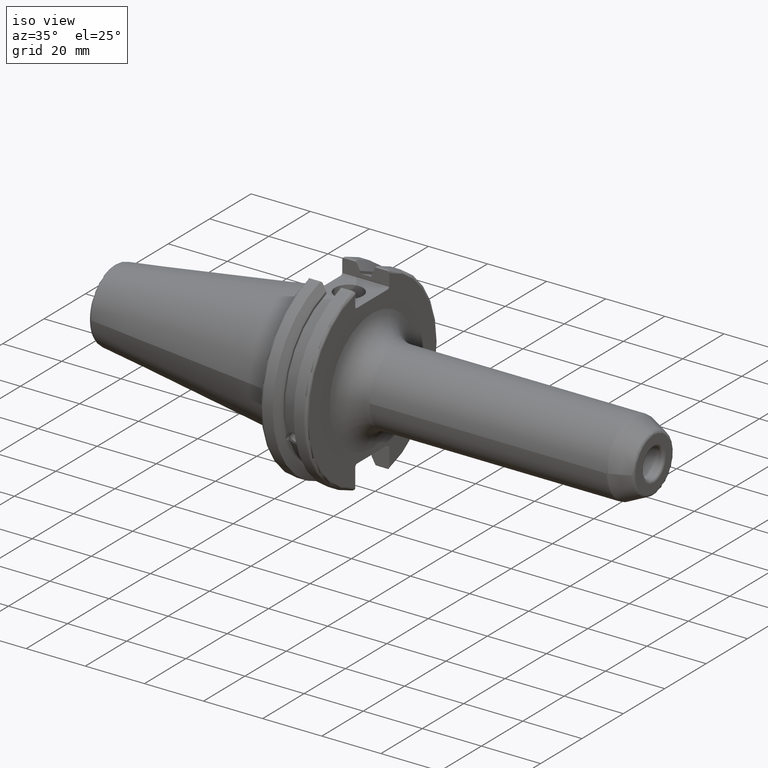
[diagram: clean part render]
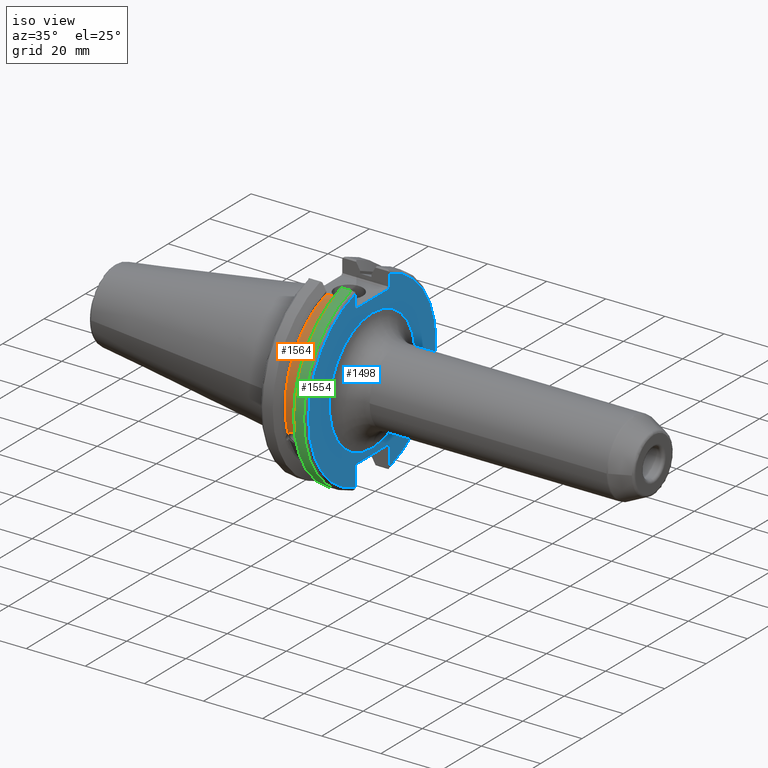
[diagram: same view with three faces highlighted in distinct colors, each labeled with its STEP entity id]
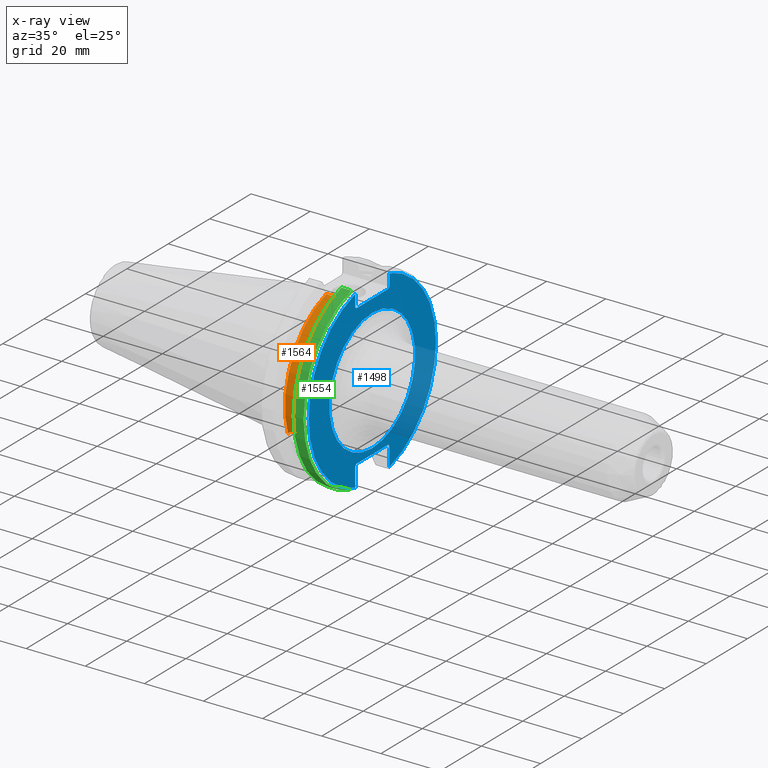
[diagram: x-ray of the same camera — body ghosted, the three highlighted faces saturated]
A machine part, iso view with three faces highlighted in distinct colors.
The next image is the same camera in x-ray (body ghosted, the three faces saturated) — at least one of them is partly hidden behind the body in this view.
Their STEP definitions:

[orange] entity #1564 — the highlighted cylindrical surface (partial cylindrical patch) has radius 28.15 mm, axis along (1, 0, 0).
#71=B_SPLINE_CURVE_WITH_KNOTS('',3,(#2518,#2519,#2520,#2521,#2522,#2523,
#2524,#2525,#2526,#2527,#2528,#2529,#2530,#2531),.UNSPECIFIED.,.F.,.F.,
(4,2,2,2,2,2,4),(0.401639126382404,0.474814416953736,0.553950208498303,
0.63308600004287,0.712221791587437,0.791357583132004,0.864532873703336),
 .UNSPECIFIED.);
#159=LINE('',#2922,#251);
#251=VECTOR('',#2081,10.);
#305=CYLINDRICAL_SURFACE('',#1759,28.15);
#432=FACE_OUTER_BOUND('',#531,.T.);
#531=EDGE_LOOP('',(#1428,#1429,#1430,#1431));
#613=CIRCLE('',#1760,28.15);
#614=CIRCLE('',#1761,28.15);
#667=VERTEX_POINT('',#2515);
#668=VERTEX_POINT('',#2517);
#749=VERTEX_POINT('',#2919);
#750=VERTEX_POINT('',#2921);
#839=EDGE_CURVE('',#668,#667,#71,.T.);
#950=EDGE_CURVE('',#750,#749,#159,.T.);
#1001=EDGE_CURVE('',#750,#667,#613,.T.);
#1002=EDGE_CURVE('',#749,#668,#614,.T.);
#1428=ORIENTED_EDGE('',*,*,#839,.T.);
#1429=ORIENTED_EDGE('',*,*,#1001,.F.);
#1430=ORIENTED_EDGE('',*,*,#950,.T.);
#1431=ORIENTED_EDGE('',*,*,#1002,.T.);
#1564=ADVANCED_FACE('',(#432),#305,.T.);
#1759=AXIS2_PLACEMENT_3D('',#3070,#2189,#2190);
#1760=AXIS2_PLACEMENT_3D('',#3071,#2191,#2192);
#1761=AXIS2_PLACEMENT_3D('',#3072,#2193,#2194);
#2081=DIRECTION('',(-1.,0.,0.));
#2189=DIRECTION('center_axis',(1.,0.,0.));
#2190=DIRECTION('ref_axis',(0.,-0.887654187951484,0.46051063246378));
#2191=DIRECTION('center_axis',(1.,0.,0.));
#2192=DIRECTION('ref_axis',(0.,0.,-1.));
#2193=DIRECTION('center_axis',(1.,0.,0.));
#2194=DIRECTION('ref_axis',(0.,0.,-1.));
#2515=CARTESIAN_POINT('',(13.0491,-26.734714844398,-8.81348524641211));
#2517=CARTESIAN_POINT('',(9.2191,-26.734714844398,-8.81348524641212));
#2518=CARTESIAN_POINT('Ctrl Pts',(9.2191,-26.734714844398,-8.81348524641212));
#2519=CARTESIAN_POINT('Ctrl Pts',(9.32533057097183,-26.8086519721597,-8.58920529678291));
#2520=CARTESIAN_POINT('Ctrl Pts',(9.47682013770509,-26.8729987454904,-8.38416529997369));
#2521=CARTESIAN_POINT('Ctrl Pts',(9.83557062657411,-26.9778908791383,-8.04056861831091));
#2522=CARTESIAN_POINT('Ctrl Pts',(10.0716450112988,-27.0233016799732,-7.88512567185902));
#2523=CARTESIAN_POINT('Ctrl Pts',(10.5890125426388,-27.0826966800569,-7.6786444840004));
#2524=CARTESIAN_POINT('Ctrl Pts',(10.8703140281848,-27.0968804077294,-7.62768458768512));
#2525=CARTESIAN_POINT('Ctrl Pts',(11.3978859718152,-27.0968804077294,-7.62768458768512));
#2526=CARTESIAN_POINT('Ctrl Pts',(11.6791874573612,-27.0826966800569,-7.6786444840004));
#2527=CARTESIAN_POINT('Ctrl Pts',(12.1965549887012,-27.0233016799732,-7.88512567185902));
#2528=CARTESIAN_POINT('Ctrl Pts',(12.4326293734259,-26.9778908791383,-8.04056861831091));
#2529=CARTESIAN_POINT('Ctrl Pts',(12.7913798622949,-26.8729987454904,-8.38416529997369));
#2530=CARTESIAN_POINT('Ctrl Pts',(12.9428694290282,-26.8086519721597,-8.58920529678291));
#2531=CARTESIAN_POINT('Ctrl Pts',(13.0491,-26.734714844398,-8.81348524641211));
#2919=CARTESIAN_POINT('',(9.2191,-8.19,26.932255754021));
#2921=CARTESIAN_POINT('',(13.0491,-8.19,26.932255754021));
#2922=CARTESIAN_POINT('',(11.1341,-8.19,26.932255754021));
#3070=CARTESIAN_POINT('Origin',(11.1341,0.,0.));
#3071=CARTESIAN_POINT('Origin',(13.0491,0.,0.));
#3072=CARTESIAN_POINT('Origin',(9.2191,0.,0.));

[blue] entity #1498 — the highlighted planar face has unit normal (1, 0, 0).
#99=LINE('',#2370,#191);
#100=LINE('',#2372,#192);
#101=LINE('',#2374,#193);
#102=LINE('',#2376,#194);
#103=LINE('',#2378,#195);
#104=LINE('',#2382,#196);
#105=LINE('',#2384,#197);
#106=LINE('',#2386,#198);
#107=LINE('',#2388,#199);
#108=LINE('',#2389,#200);
#191=VECTOR('',#1839,10.);
#192=VECTOR('',#1840,10.);
#193=VECTOR('',#1841,10.);
#194=VECTOR('',#1842,10.);
#195=VECTOR('',#1843,10.);
#196=VECTOR('',#1846,10.);
#197=VECTOR('',#1847,10.);
#198=VECTOR('',#1848,10.);
#199=VECTOR('',#1849,10.);
#200=VECTOR('',#1850,10.);
#310=FACE_BOUND('',#455,.T.);
#324=PLANE('',#1625);
#366=FACE_OUTER_BOUND('',#454,.T.);
#454=EDGE_LOOP('',(#1055,#1056,#1057,#1058,#1059,#1060,#1061,#1062,#1063,
#1064,#1065,#1066));
#455=EDGE_LOOP('',(#1067));
#562=CIRCLE('',#1624,20.7);
#563=CIRCLE('',#1626,30.75);
#564=CIRCLE('',#1627,30.75);
#637=VERTEX_POINT('',#2362);
#638=VERTEX_POINT('',#2366);
#639=VERTEX_POINT('',#2367);
#640=VERTEX_POINT('',#2369);
#641=VERTEX_POINT('',#2371);
#642=VERTEX_POINT('',#2373);
#643=VERTEX_POINT('',#2375);
#644=VERTEX_POINT('',#2377);
#645=VERTEX_POINT('',#2379);
#646=VERTEX_POINT('',#2381);
#647=VERTEX_POINT('',#2383);
#648=VERTEX_POINT('',#2385);
#649=VERTEX_POINT('',#2387);
#800=EDGE_CURVE('',#637,#637,#562,.T.);
#801=EDGE_CURVE('',#638,#639,#563,.T.);
#802=EDGE_CURVE('',#638,#640,#99,.T.);
#803=EDGE_CURVE('',#641,#640,#100,.T.);
#804=EDGE_CURVE('',#641,#642,#101,.T.);
#805=EDGE_CURVE('',#643,#642,#102,.T.);
#806=EDGE_CURVE('',#643,#644,#103,.T.);
#807=EDGE_CURVE('',#645,#644,#564,.T.);
#808=EDGE_CURVE('',#645,#646,#104,.T.);
#809=EDGE_CURVE('',#647,#646,#105,.T.);
#810=EDGE_CURVE('',#647,#648,#106,.T.);
#811=EDGE_CURVE('',#649,#648,#107,.T.);
#812=EDGE_CURVE('',#649,#639,#108,.T.);
#1055=ORIENTED_EDGE('',*,*,#801,.F.);
#1056=ORIENTED_EDGE('',*,*,#802,.T.);
#1057=ORIENTED_EDGE('',*,*,#803,.F.);
#1058=ORIENTED_EDGE('',*,*,#804,.T.);
#1059=ORIENTED_EDGE('',*,*,#805,.F.);
#1060=ORIENTED_EDGE('',*,*,#806,.T.);
#1061=ORIENTED_EDGE('',*,*,#807,.F.);
#1062=ORIENTED_EDGE('',*,*,#808,.T.);
#1063=ORIENTED_EDGE('',*,*,#809,.F.);
#1064=ORIENTED_EDGE('',*,*,#810,.T.);
#1065=ORIENTED_EDGE('',*,*,#811,.F.);
#1066=ORIENTED_EDGE('',*,*,#812,.T.);
#1067=ORIENTED_EDGE('',*,*,#800,.F.);
#1498=ADVANCED_FACE('',(#366,#310),#324,.T.);
#1624=AXIS2_PLACEMENT_3D('',#2364,#1833,#1834);
#1625=AXIS2_PLACEMENT_3D('',#2365,#1835,#1836);
#1626=AXIS2_PLACEMENT_3D('',#2368,#1837,#1838);
#1627=AXIS2_PLACEMENT_3D('',#2380,#1844,#1845);
#1833=DIRECTION('center_axis',(1.,0.,0.));
#1834=DIRECTION('ref_axis',(0.,-1.,-1.22464679914735E-16));
#1835=DIRECTION('center_axis',(1.,0.,0.));
#1836=DIRECTION('ref_axis',(0.,0.,-1.));
#1837=DIRECTION('center_axis',(-1.,0.,0.));
#1838=DIRECTION('ref_axis',(0.,1.,-6.12323399573677E-17));
#1839=DIRECTION('',(0.,0.,-1.));
#1840=DIRECTION('',(0.,0.707106781186549,0.707106781186546));
#1841=DIRECTION('',(0.,-1.,0.));
#1842=DIRECTION('',(0.,0.70710678118655,-0.707106781186545));
#1843=DIRECTION('',(0.,0.,1.));
#1844=DIRECTION('center_axis',(-1.,0.,0.));
#1845=DIRECTION('ref_axis',(0.,-1.,1.60812264967664E-16));
#1846=DIRECTION('',(0.,0.,1.));
#1847=DIRECTION('',(0.,-0.707106781186549,-0.707106781186546));
#1848=DIRECTION('',(0.,1.,0.));
#1849=DIRECTION('',(0.,-0.707106781186549,0.707106781186546));
#1850=DIRECTION('',(0.,0.,-1.));
#2362=CARTESIAN_POINT('',(19.05,-2.53501887423502E-15,-20.7));
#2364=CARTESIAN_POINT('Origin',(19.05,0.,0.));
#2365=CARTESIAN_POINT('Origin',(19.05,0.,0.));
#2366=CARTESIAN_POINT('',(19.05,8.19,29.6392712461019));
#2367=CARTESIAN_POINT('',(19.05,8.19,-29.6392712461019));
#2368=CARTESIAN_POINT('Origin',(19.05,0.,0.));
#2369=CARTESIAN_POINT('',(19.05,8.19,25.5));
#2370=CARTESIAN_POINT('',(19.05,8.19,12.5));
#2371=CARTESIAN_POINT('',(19.05,7.69,25.));
#2372=CARTESIAN_POINT('',(19.05,-0.35750000000001,16.9525));
#2373=CARTESIAN_POINT('',(19.05,-7.69,25.));
#2374=CARTESIAN_POINT('',(19.05,0.,25.));
#2375=CARTESIAN_POINT('',(19.05,-8.19,25.5));
#2376=CARTESIAN_POINT('',(19.05,0.357500000000014,16.9525));
#2377=CARTESIAN_POINT('',(19.05,-8.19,29.6392712461019));
#2378=CARTESIAN_POINT('',(19.05,-8.19,12.5));
#2379=CARTESIAN_POINT('',(19.05,-8.19,-29.6392712461019));
#2380=CARTESIAN_POINT('Origin',(19.05,0.,0.));
#2381=CARTESIAN_POINT('',(19.05,-8.19,-23.1));
#2382=CARTESIAN_POINT('',(19.05,-8.19,-11.3));
#2383=CARTESIAN_POINT('',(19.05,-7.69,-22.6));
#2384=CARTESIAN_POINT('',(19.05,-0.242499999999991,-15.1525));
#2385=CARTESIAN_POINT('',(19.05,7.69,-22.6));
#2386=CARTESIAN_POINT('',(19.05,-2.77555756156289E-16,-22.6));
#2387=CARTESIAN_POINT('',(19.05,8.19,-23.1));
#2388=CARTESIAN_POINT('',(19.05,0.242499999999989,-15.1525));
#2389=CARTESIAN_POINT('',(19.05,8.19,-11.3));

[green] entity #1554 — the highlighted cylindrical surface (partial cylindrical patch) has radius 31.75 mm, axis along (1, 0, 0).
#179=LINE('',#3042,#271);
#180=LINE('',#3044,#272);
#271=VECTOR('',#2153,10.);
#272=VECTOR('',#2156,10.);
#300=CYLINDRICAL_SURFACE('',#1744,31.75);
#422=FACE_OUTER_BOUND('',#521,.T.);
#521=EDGE_LOOP('',(#1389,#1390,#1391,#1392));
#574=CIRCLE('',#1660,31.75);
#598=CIRCLE('',#1716,31.75);
#681=VERTEX_POINT('',#2602);
#682=VERTEX_POINT('',#2606);
#744=VERTEX_POINT('',#2885);
#745=VERTEX_POINT('',#2894);
#857=EDGE_CURVE('',#682,#681,#574,.T.);
#943=EDGE_CURVE('',#744,#745,#598,.T.);
#989=EDGE_CURVE('',#745,#681,#179,.T.);
#990=EDGE_CURVE('',#682,#744,#180,.T.);
#1389=ORIENTED_EDGE('',*,*,#943,.F.);
#1390=ORIENTED_EDGE('',*,*,#990,.F.);
#1391=ORIENTED_EDGE('',*,*,#857,.T.);
#1392=ORIENTED_EDGE('',*,*,#989,.F.);
#1554=ADVANCED_FACE('',(#422),#300,.T.);
#1660=AXIS2_PLACEMENT_3D('',#2607,#1930,#1931);
#1716=AXIS2_PLACEMENT_3D('',#2895,#2074,#2075);
#1744=AXIS2_PLACEMENT_3D('',#3043,#2154,#2155);
#1930=DIRECTION('center_axis',(1.,0.,0.));
#1931=DIRECTION('ref_axis',(0.,0.,-1.));
#2074=DIRECTION('center_axis',(1.,0.,0.));
#2075=DIRECTION('ref_axis',(0.,-1.,1.60812264967664E-16));
#2153=DIRECTION('',(-1.,0.,0.));
#2154=DIRECTION('center_axis',(1.,0.,0.));
#2155=DIRECTION('ref_axis',(0.,-1.,1.22464679914735E-16));
#2156=DIRECTION('',(1.,0.,0.));
#2602=CARTESIAN_POINT('',(14.6602667690756,-8.67204822802686,-30.5427254764662));
#2606=CARTESIAN_POINT('',(14.6602667690756,-8.67204822802685,30.5427254764662));
#2607=CARTESIAN_POINT('Origin',(14.6602667690756,0.,0.));
#2885=CARTESIAN_POINT('',(18.05,-8.67204822802685,30.5427254764662));
#2894=CARTESIAN_POINT('',(18.05,-8.67204822802686,-30.5427254764662));
#2895=CARTESIAN_POINT('Origin',(18.05,0.,0.));
#3042=CARTESIAN_POINT('',(16.8551333845378,-8.67204822802686,-30.5427254764662));
#3043=CARTESIAN_POINT('Origin',(16.8551333845378,0.,0.));
#3044=CARTESIAN_POINT('',(16.8551333845378,-8.67204822802685,30.5427254764662));